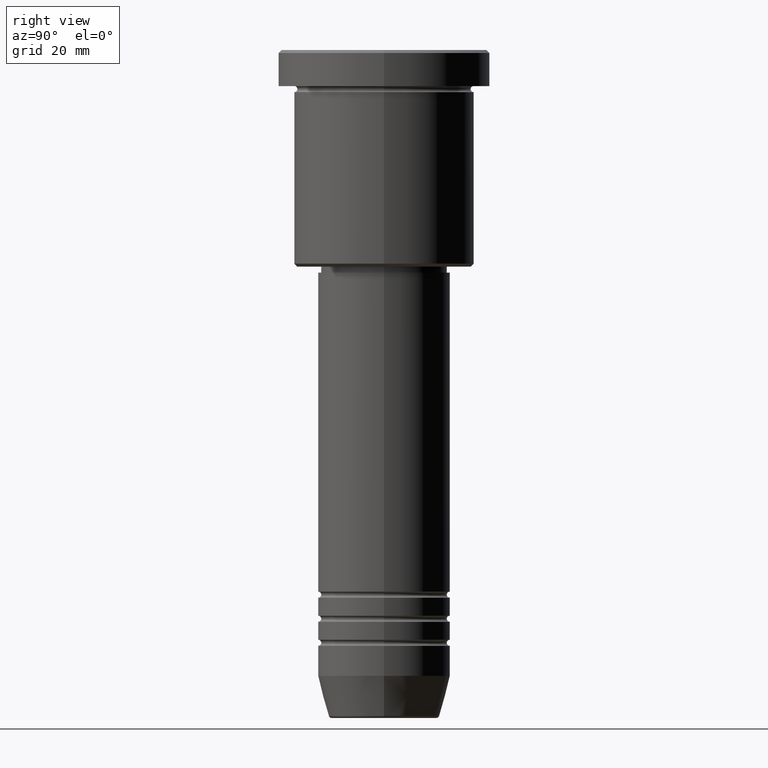
[diagram: clean part render]
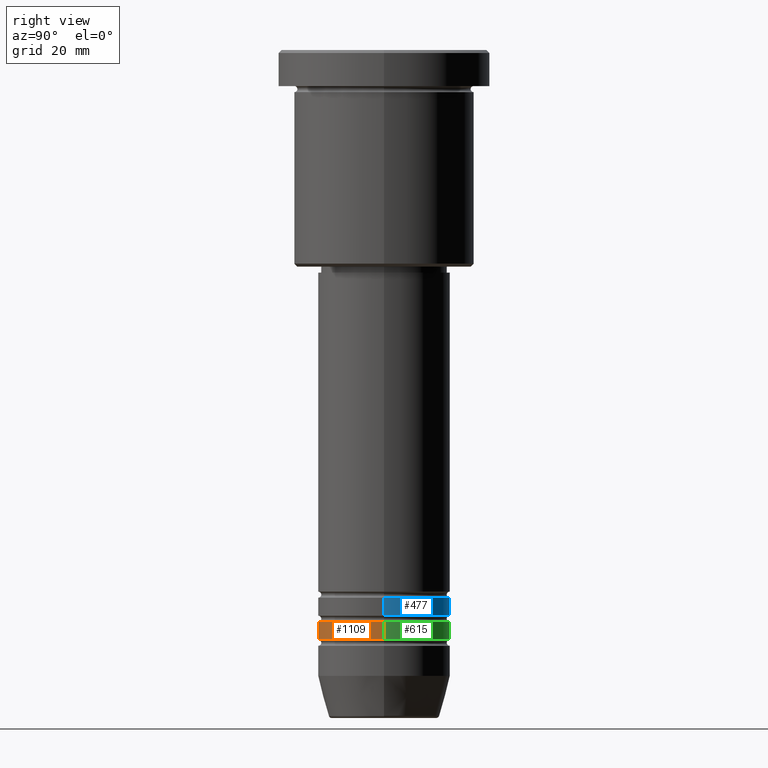
[diagram: same view with three faces highlighted in distinct colors, each labeled with its STEP entity id]
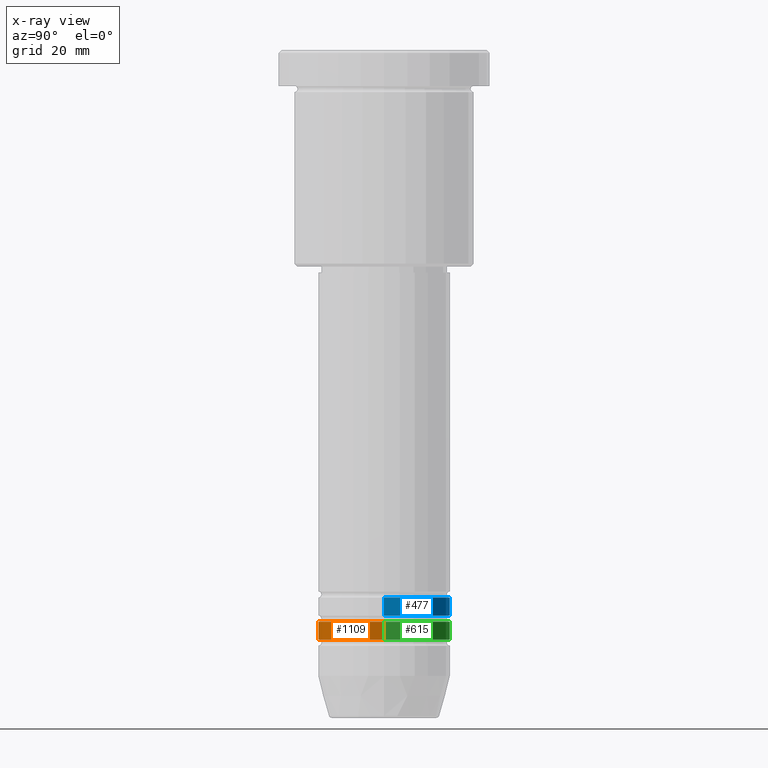
[diagram: x-ray of the same camera — body ghosted, the three highlighted faces saturated]
A machine part, right view with three faces highlighted in distinct colors.
The next image is the same camera in x-ray (body ghosted, the three faces saturated) — at least one of them is partly hidden behind the body in this view.
Their STEP definitions:

[orange] entity #1109 — the highlighted cylindrical surface (partial cylindrical patch) has radius 11 mm, axis along (-0, -0, 1).
#23 = CARTESIAN_POINT ( 'NONE',  ( 0.000000000000000000, 0.000000000000000000, 0.000000000000000000 ) ) ;
#115 = DIRECTION ( 'NONE',  ( 1.000000000000000000, 0.000000000000000000, 0.000000000000000000 ) ) ;
#118 = ORIENTED_EDGE ( 'NONE', *, *, #334, .F. ) ;
#157 = EDGE_LOOP ( 'NONE', ( #622, #363, #372, #118 ) ) ;
#193 = LINE ( 'NONE', #920, #439 ) ;
#225 = AXIS2_PLACEMENT_3D ( 'NONE', #23, #319, #1047 ) ;
#242 = VECTOR ( 'NONE', #699, 1000.000000000000000 ) ;
#259 = EDGE_CURVE ( 'NONE', #432, #457, #337, .T. ) ;
#264 = CARTESIAN_POINT ( 'NONE',  ( 0.000000000000000000, 0.000000000000000000, -94.99999999999988631 ) ) ;
#315 = VERTEX_POINT ( 'NONE', #1170 ) ;
#319 = DIRECTION ( 'NONE',  ( -0.000000000000000000, -0.000000000000000000, 1.000000000000000000 ) ) ;
#326 = CYLINDRICAL_SURFACE ( 'NONE', #225, 11.00000000000000000 ) ;
#334 = EDGE_CURVE ( 'NONE', #457, #315, #415, .T. ) ;
#337 = LINE ( 'NONE', #601, #242 ) ;
#363 = ORIENTED_EDGE ( 'NONE', *, *, #486, .T. ) ;
#372 = ORIENTED_EDGE ( 'NONE', *, *, #940, .T. ) ;
#410 = FACE_OUTER_BOUND ( 'NONE', #157, .T. ) ;
#415 = CIRCLE ( 'NONE', #853, 11.00000000000000000 ) ;
#432 = VERTEX_POINT ( 'NONE', #1015 ) ;
#439 = VECTOR ( 'NONE', #1012, 1000.000000000000000 ) ;
#457 = VERTEX_POINT ( 'NONE', #863 ) ;
#459 = CARTESIAN_POINT ( 'NONE',  ( 11.00000000000000000, 0.000000000000000000, -97.99999999999987210 ) ) ;
#486 = EDGE_CURVE ( 'NONE', #432, #528, #726, .T. ) ;
#528 = VERTEX_POINT ( 'NONE', #459 ) ;
#601 = CARTESIAN_POINT ( 'NONE',  ( -11.00000000000000000, 1.347111479062088405E-15, 0.000000000000000000 ) ) ;
#622 = ORIENTED_EDGE ( 'NONE', *, *, #259, .F. ) ;
#699 = DIRECTION ( 'NONE',  ( -0.000000000000000000, -0.000000000000000000, 1.000000000000000000 ) ) ;
#722 = DIRECTION ( 'NONE',  ( 1.000000000000000000, 0.000000000000000000, 0.000000000000000000 ) ) ;
#726 = CIRCLE ( 'NONE', #838, 11.00000000000000000 ) ;
#838 = AXIS2_PLACEMENT_3D ( 'NONE', #947, #953, #115 ) ;
#853 = AXIS2_PLACEMENT_3D ( 'NONE', #264, #1149, #722 ) ;
#863 = CARTESIAN_POINT ( 'NONE',  ( -11.00000000000000000, 1.347111479062088405E-15, -94.99999999999988631 ) ) ;
#920 = CARTESIAN_POINT ( 'NONE',  ( 11.00000000000000000, 0.000000000000000000, 0.000000000000000000 ) ) ;
#940 = EDGE_CURVE ( 'NONE', #528, #315, #193, .T. ) ;
#947 = CARTESIAN_POINT ( 'NONE',  ( 0.000000000000000000, 0.000000000000000000, -97.99999999999987210 ) ) ;
#953 = DIRECTION ( 'NONE',  ( -0.000000000000000000, -0.000000000000000000, 1.000000000000000000 ) ) ;
#1012 = DIRECTION ( 'NONE',  ( -0.000000000000000000, -0.000000000000000000, 1.000000000000000000 ) ) ;
#1015 = CARTESIAN_POINT ( 'NONE',  ( -11.00000000000000000, 1.347111479062088405E-15, -97.99999999999987210 ) ) ;
#1047 = DIRECTION ( 'NONE',  ( 1.000000000000000000, 0.000000000000000000, 0.000000000000000000 ) ) ;
#1109 = ADVANCED_FACE ( 'NONE', ( #410 ), #326, .T. ) ;
#1149 = DIRECTION ( 'NONE',  ( -0.000000000000000000, -0.000000000000000000, 1.000000000000000000 ) ) ;
#1170 = CARTESIAN_POINT ( 'NONE',  ( 11.00000000000000000, 0.000000000000000000, -94.99999999999988631 ) ) ;

[blue] entity #477 — the highlighted cylindrical surface (partial cylindrical patch) has radius 11 mm, axis along (-0, -0, 1).
#6 = ORIENTED_EDGE ( 'NONE', *, *, #1171, .F. ) ;
#82 = VERTEX_POINT ( 'NONE', #529 ) ;
#98 = ORIENTED_EDGE ( 'NONE', *, *, #116, .F. ) ;
#116 = EDGE_CURVE ( 'NONE', #82, #376, #532, .T. ) ;
#119 = CARTESIAN_POINT ( 'NONE',  ( -11.00000000000000178, 1.347111479062088602E-15, 0.000000000000000000 ) ) ;
#120 = ORIENTED_EDGE ( 'NONE', *, *, #703, .T. ) ;
#127 = DIRECTION ( 'NONE',  ( -0.000000000000000000, -0.000000000000000000, 1.000000000000000000 ) ) ;
#171 = EDGE_LOOP ( 'NONE', ( #120, #1129, #98, #6 ) ) ;
#211 = LINE ( 'NONE', #688, #728 ) ;
#305 = CIRCLE ( 'NONE', #1059, 11.00000000000000355 ) ;
#316 = CYLINDRICAL_SURFACE ( 'NONE', #327, 11.00000000000000178 ) ;
#327 = AXIS2_PLACEMENT_3D ( 'NONE', #773, #957, #491 ) ;
#336 = FACE_OUTER_BOUND ( 'NONE', #171, .T. ) ;
#376 = VERTEX_POINT ( 'NONE', #717 ) ;
#468 = DIRECTION ( 'NONE',  ( 1.000000000000000000, 0.000000000000000000, 0.000000000000000000 ) ) ;
#477 = ADVANCED_FACE ( 'NONE', ( #336 ), #316, .T. ) ;
#491 = DIRECTION ( 'NONE',  ( 1.000000000000000000, 0.000000000000000000, 0.000000000000000000 ) ) ;
#506 = CARTESIAN_POINT ( 'NONE',  ( 0.000000000000000000, 0.000000000000000000, -93.99999999999990052 ) ) ;
#529 = CARTESIAN_POINT ( 'NONE',  ( 11.00000000000000000, 0.000000000000000000, -90.99999999999988631 ) ) ;
#532 = CIRCLE ( 'NONE', #999, 11.00000000000000000 ) ;
#597 = DIRECTION ( 'NONE',  ( -0.000000000000000000, -0.000000000000000000, 1.000000000000000000 ) ) ;
#681 = LINE ( 'NONE', #119, #911 ) ;
#686 = EDGE_CURVE ( 'NONE', #848, #376, #681, .T. ) ;
#688 = CARTESIAN_POINT ( 'NONE',  ( 11.00000000000000178, 0.000000000000000000, 0.000000000000000000 ) ) ;
#703 = EDGE_CURVE ( 'NONE', #1100, #848, #305, .T. ) ;
#717 = CARTESIAN_POINT ( 'NONE',  ( -11.00000000000000000, 1.347111479062088602E-15, -90.99999999999988631 ) ) ;
#728 = VECTOR ( 'NONE', #597, 1000.000000000000000 ) ;
#760 = CARTESIAN_POINT ( 'NONE',  ( 11.00000000000000355, 0.000000000000000000, -93.99999999999990052 ) ) ;
#773 = CARTESIAN_POINT ( 'NONE',  ( 0.000000000000000000, 0.000000000000000000, 0.000000000000000000 ) ) ;
#848 = VERTEX_POINT ( 'NONE', #877 ) ;
#877 = CARTESIAN_POINT ( 'NONE',  ( -11.00000000000000355, 1.347111479062088996E-15, -93.99999999999990052 ) ) ;
#911 = VECTOR ( 'NONE', #127, 1000.000000000000000 ) ;
#957 = DIRECTION ( 'NONE',  ( -0.000000000000000000, -0.000000000000000000, 1.000000000000000000 ) ) ;
#999 = AXIS2_PLACEMENT_3D ( 'NONE', #1114, #1104, #468 ) ;
#1041 = DIRECTION ( 'NONE',  ( -0.000000000000000000, -0.000000000000000000, 1.000000000000000000 ) ) ;
#1049 = DIRECTION ( 'NONE',  ( 1.000000000000000000, 0.000000000000000000, 0.000000000000000000 ) ) ;
#1059 = AXIS2_PLACEMENT_3D ( 'NONE', #506, #1041, #1049 ) ;
#1100 = VERTEX_POINT ( 'NONE', #760 ) ;
#1104 = DIRECTION ( 'NONE',  ( -0.000000000000000000, -0.000000000000000000, 1.000000000000000000 ) ) ;
#1114 = CARTESIAN_POINT ( 'NONE',  ( 0.000000000000000000, 0.000000000000000000, -90.99999999999988631 ) ) ;
#1129 = ORIENTED_EDGE ( 'NONE', *, *, #686, .T. ) ;
#1171 = EDGE_CURVE ( 'NONE', #1100, #82, #211, .T. ) ;

[green] entity #615 — the highlighted cylindrical surface (partial cylindrical patch) has radius 11 mm, axis along (-0, -0, 1).
#179 = CARTESIAN_POINT ( 'NONE',  ( 0.000000000000000000, 0.000000000000000000, 0.000000000000000000 ) ) ;
#193 = LINE ( 'NONE', #920, #439 ) ;
#242 = VECTOR ( 'NONE', #699, 1000.000000000000000 ) ;
#259 = EDGE_CURVE ( 'NONE', #432, #457, #337, .T. ) ;
#279 = EDGE_LOOP ( 'NONE', ( #729, #711, #731, #387 ) ) ;
#283 = AXIS2_PLACEMENT_3D ( 'NONE', #179, #997, #546 ) ;
#315 = VERTEX_POINT ( 'NONE', #1170 ) ;
#337 = LINE ( 'NONE', #601, #242 ) ;
#387 = ORIENTED_EDGE ( 'NONE', *, *, #940, .F. ) ;
#432 = VERTEX_POINT ( 'NONE', #1015 ) ;
#439 = VECTOR ( 'NONE', #1012, 1000.000000000000000 ) ;
#450 = CARTESIAN_POINT ( 'NONE',  ( 0.000000000000000000, 0.000000000000000000, -94.99999999999988631 ) ) ;
#457 = VERTEX_POINT ( 'NONE', #863 ) ;
#459 = CARTESIAN_POINT ( 'NONE',  ( 11.00000000000000000, 0.000000000000000000, -97.99999999999987210 ) ) ;
#528 = VERTEX_POINT ( 'NONE', #459 ) ;
#546 = DIRECTION ( 'NONE',  ( 1.000000000000000000, 0.000000000000000000, 0.000000000000000000 ) ) ;
#579 = DIRECTION ( 'NONE',  ( 1.000000000000000000, 0.000000000000000000, 0.000000000000000000 ) ) ;
#601 = CARTESIAN_POINT ( 'NONE',  ( -11.00000000000000000, 1.347111479062088405E-15, 0.000000000000000000 ) ) ;
#615 = ADVANCED_FACE ( 'NONE', ( #915 ), #640, .T. ) ;
#640 = CYLINDRICAL_SURFACE ( 'NONE', #283, 11.00000000000000000 ) ;
#662 = CARTESIAN_POINT ( 'NONE',  ( 0.000000000000000000, 0.000000000000000000, -97.99999999999987210 ) ) ;
#699 = DIRECTION ( 'NONE',  ( -0.000000000000000000, -0.000000000000000000, 1.000000000000000000 ) ) ;
#711 = ORIENTED_EDGE ( 'NONE', *, *, #259, .T. ) ;
#729 = ORIENTED_EDGE ( 'NONE', *, *, #1118, .T. ) ;
#731 = ORIENTED_EDGE ( 'NONE', *, *, #879, .F. ) ;
#808 = DIRECTION ( 'NONE',  ( -0.000000000000000000, -0.000000000000000000, 1.000000000000000000 ) ) ;
#811 = DIRECTION ( 'NONE',  ( 1.000000000000000000, 0.000000000000000000, 0.000000000000000000 ) ) ;
#863 = CARTESIAN_POINT ( 'NONE',  ( -11.00000000000000000, 1.347111479062088405E-15, -94.99999999999988631 ) ) ;
#879 = EDGE_CURVE ( 'NONE', #315, #457, #1002, .T. ) ;
#893 = AXIS2_PLACEMENT_3D ( 'NONE', #662, #1110, #579 ) ;
#915 = FACE_OUTER_BOUND ( 'NONE', #279, .T. ) ;
#920 = CARTESIAN_POINT ( 'NONE',  ( 11.00000000000000000, 0.000000000000000000, 0.000000000000000000 ) ) ;
#940 = EDGE_CURVE ( 'NONE', #528, #315, #193, .T. ) ;
#948 = CIRCLE ( 'NONE', #893, 11.00000000000000000 ) ;
#965 = AXIS2_PLACEMENT_3D ( 'NONE', #450, #808, #811 ) ;
#997 = DIRECTION ( 'NONE',  ( -0.000000000000000000, -0.000000000000000000, 1.000000000000000000 ) ) ;
#1002 = CIRCLE ( 'NONE', #965, 11.00000000000000000 ) ;
#1012 = DIRECTION ( 'NONE',  ( -0.000000000000000000, -0.000000000000000000, 1.000000000000000000 ) ) ;
#1015 = CARTESIAN_POINT ( 'NONE',  ( -11.00000000000000000, 1.347111479062088405E-15, -97.99999999999987210 ) ) ;
#1110 = DIRECTION ( 'NONE',  ( -0.000000000000000000, -0.000000000000000000, 1.000000000000000000 ) ) ;
#1118 = EDGE_CURVE ( 'NONE', #528, #432, #948, .T. ) ;
#1170 = CARTESIAN_POINT ( 'NONE',  ( 11.00000000000000000, 0.000000000000000000, -94.99999999999988631 ) ) ;